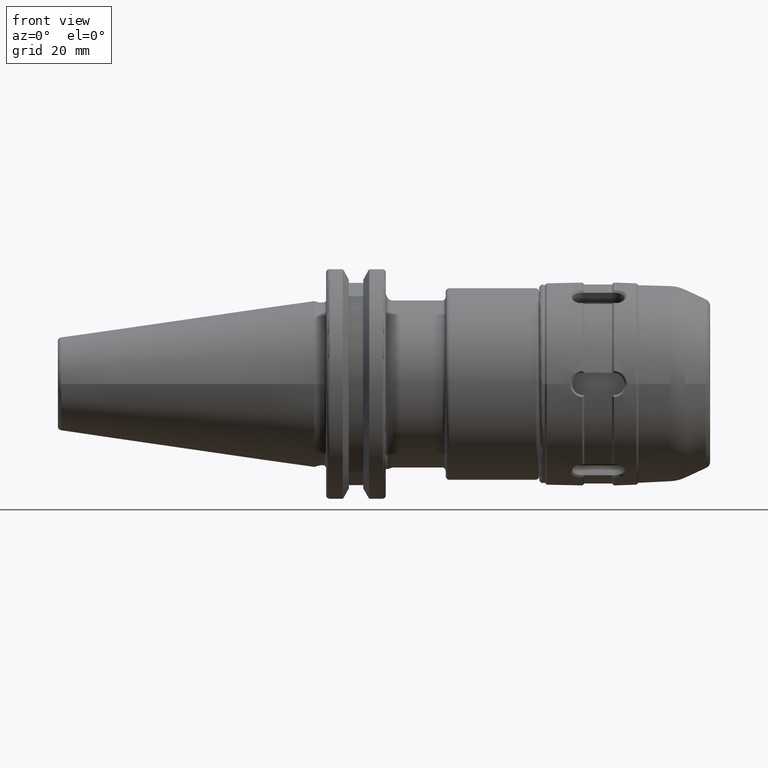
[diagram: clean part render]
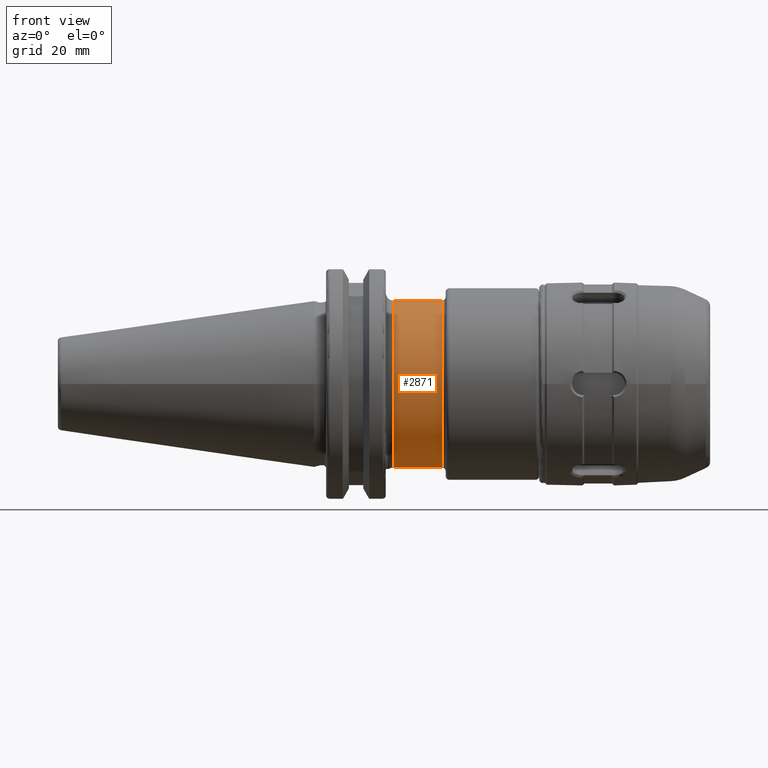
[diagram: same view with one face highlighted and labeled with its STEP entity id]
A machine part, front view. The second image highlights one B-rep face of the part: STEP entity #2871.
In plain terms, the highlighted cylindrical surface (bore or boss wall) has radius 22.225 mm, axis along (-1, 0, 0).
Its self-contained STEP definition (entity closure, byte-faithful):
#181=CYLINDRICAL_SURFACE('',#3129,22.225);
#308=FACE_OUTER_BOUND('',#470,.T.);
#470=EDGE_LOOP('',(#1961,#1962,#1963,#1964,#1965,#1966));
#638=LINE('',#4341,#787);
#787=VECTOR('',#3523,22.225);
#956=CIRCLE('',#3127,22.225);
#957=CIRCLE('',#3128,22.225);
#958=CIRCLE('',#3130,22.225);
#959=CIRCLE('',#3131,22.225);
#1144=VERTEX_POINT('',#4331);
#1145=VERTEX_POINT('',#4333);
#1146=VERTEX_POINT('',#4337);
#1147=VERTEX_POINT('',#4338);
#1473=EDGE_CURVE('',#1144,#1145,#956,.T.);
#1474=EDGE_CURVE('',#1145,#1144,#957,.T.);
#1475=EDGE_CURVE('',#1146,#1147,#958,.T.);
#1476=EDGE_CURVE('',#1147,#1146,#959,.T.);
#1477=EDGE_CURVE('',#1147,#1144,#638,.T.);
#1961=ORIENTED_EDGE('',*,*,#1475,.F.);
#1962=ORIENTED_EDGE('',*,*,#1476,.F.);
#1963=ORIENTED_EDGE('',*,*,#1477,.T.);
#1964=ORIENTED_EDGE('',*,*,#1474,.F.);
#1965=ORIENTED_EDGE('',*,*,#1473,.F.);
#1966=ORIENTED_EDGE('',*,*,#1477,.F.);
#2871=ADVANCED_FACE('',(#308),#181,.T.);
#3127=AXIS2_PLACEMENT_3D('',#4334,#3513,#3514);
#3128=AXIS2_PLACEMENT_3D('',#4335,#3515,#3516);
#3129=AXIS2_PLACEMENT_3D('',#4336,#3517,#3518);
#3130=AXIS2_PLACEMENT_3D('',#4339,#3519,#3520);
#3131=AXIS2_PLACEMENT_3D('',#4340,#3521,#3522);
#3513=DIRECTION('center_axis',(1.,0.,0.));
#3514=DIRECTION('ref_axis',(0.,1.22464679914735E-16,-1.));
#3515=DIRECTION('center_axis',(1.,0.,0.));
#3516=DIRECTION('ref_axis',(0.,1.22464679914735E-16,-1.));
#3517=DIRECTION('center_axis',(-1.,0.,0.));
#3518=DIRECTION('ref_axis',(0.,0.,1.));
#3519=DIRECTION('center_axis',(-1.,0.,0.));
#3520=DIRECTION('ref_axis',(0.,1.22464679914735E-16,-1.));
#3521=DIRECTION('center_axis',(-1.,0.,0.));
#3522=DIRECTION('ref_axis',(0.,1.22464679914735E-16,-1.));
#3523=DIRECTION('',(1.,0.,0.));
#4331=CARTESIAN_POINT('',(34.,-2.72177751110499E-15,-22.225));
#4333=CARTESIAN_POINT('',(34.,-5.44355502220999E-15,22.225));
#4334=CARTESIAN_POINT('Origin',(34.,0.,0.));
#4335=CARTESIAN_POINT('Origin',(34.,0.,0.));
#4336=CARTESIAN_POINT('Origin',(27.025,0.,0.));
#4337=CARTESIAN_POINT('',(21.05,0.,22.225));
#4338=CARTESIAN_POINT('',(21.05,-2.72177751110499E-15,-22.225));
#4339=CARTESIAN_POINT('Origin',(21.05,0.,0.));
#4340=CARTESIAN_POINT('Origin',(21.05,0.,0.));
#4341=CARTESIAN_POINT('',(27.025,-2.72177751110499E-15,-22.225));